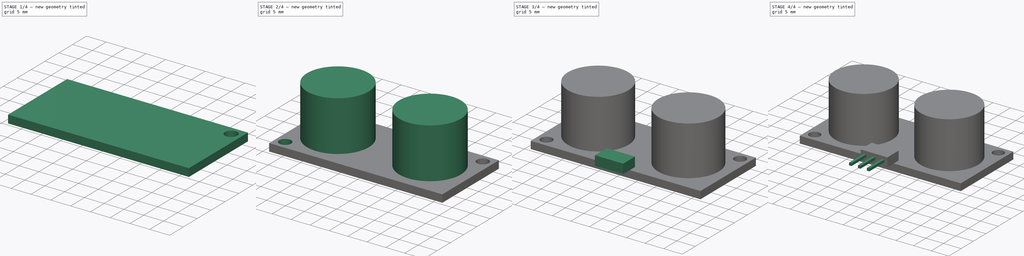
[diagram: build sequence overview — one tinted view per stage of 4, left to right]
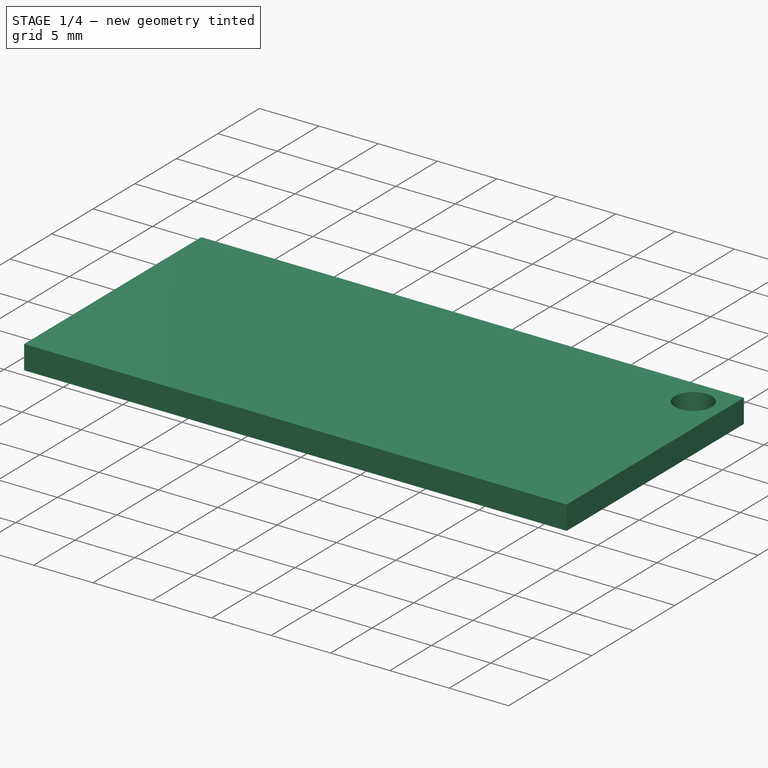
[diagram: stage 1 of 4 — iso view after this stage's code; geometry added in this stage tinted green]
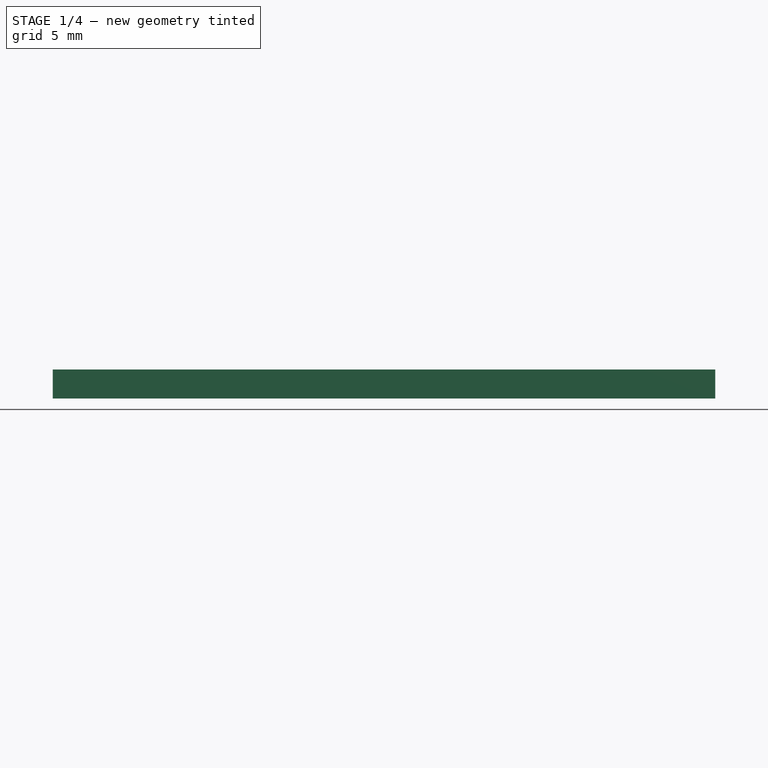
[diagram: stage 1 of 4 — front view after this stage's code; geometry added in this stage tinted green]
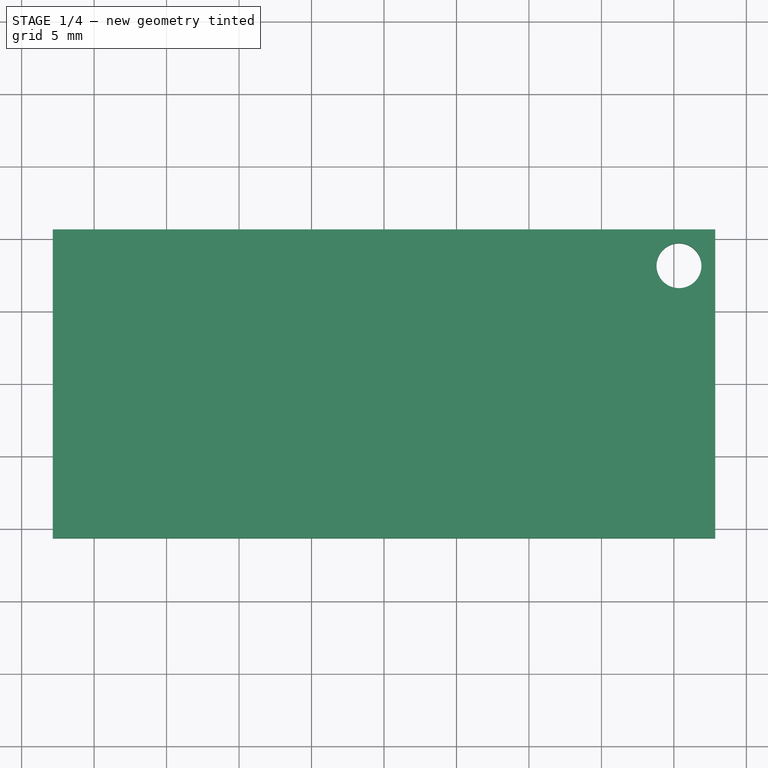
[diagram: stage 1 of 4 — top view after this stage's code; geometry added in this stage tinted green]
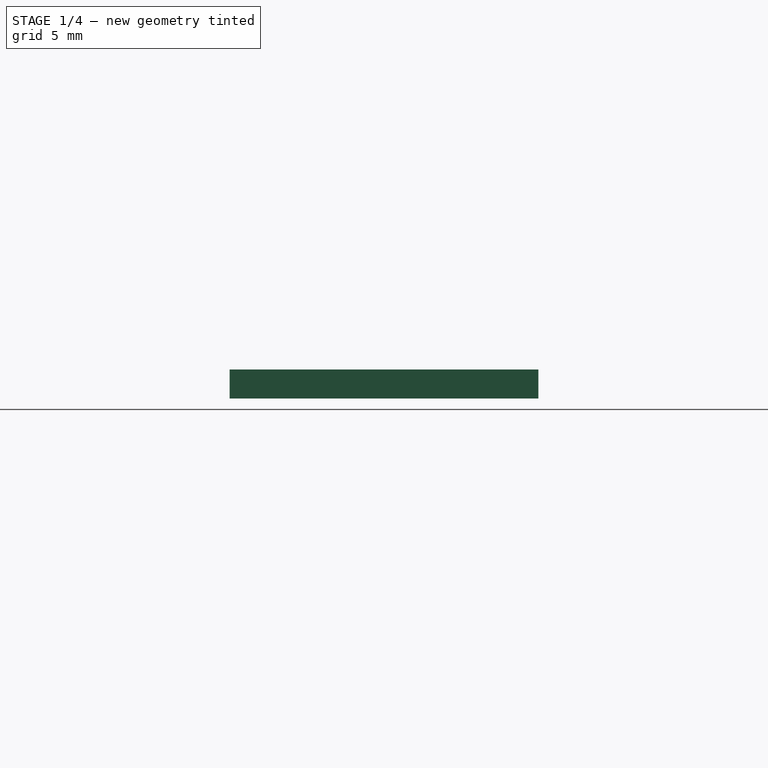
[diagram: stage 1 of 4 — right view after this stage's code; geometry added in this stage tinted green]
FCSTD DOCUMENT  (FreeCAD 0.18.4R)
Label: ultrazvučni_ping
License: All rights reserved
LicenseURL: http://en.wikipedia.org/wiki/All_rights_reserved
objects: Sketcher::SketchObject×6, PartDesign::Pad×6, PartDesign::PolarPattern×2, PartDesign::Pocket×1, PartDesign::LinearPattern×1, PartDesign::Body×1
note: 24 computed .brp shape members not serialized (recipe doc carries the construction recipe); baked Part::Feature solids carry a one-line shape summary decoded from their .brp

FEATURE [Sketcher::SketchObject] Sketch
  MapMode = 5
  Support = -> [XY_Plane]
  sketch-geometry (4):
    g0: LineSegment StartX=-22.85 StartY=10.65 StartZ=0 EndX=22.85 EndY=10.65 EndZ=0
    g1: LineSegment StartX=22.85 StartY=10.65 StartZ=0 EndX=22.85 EndY=-10.65 EndZ=0
    g2: LineSegment StartX=22.85 StartY=-10.65 StartZ=0 EndX=-22.85 EndY=-10.65 EndZ=0
    g3: LineSegment StartX=-22.85 StartY=-10.65 StartZ=0 EndX=-22.85 EndY=10.65 EndZ=0
  constraints (10):
    c: Coincident(g0,g1)
    c: Coincident(g1,g2)
    c: Coincident(g2,g3)
    c: Coincident(g3,g0)
    c: Horizontal(g2)
    c: Vertical(g1)
    c: Distance(g3) = 21.3
    c: Distance(g0) = 45.7
    c: Symmetric(g0,g2,g-1)
    c: Symmetric(g0,g0,g-2)
FEATURE [PartDesign::Pad] Pad
  Length = 2
  Length2 = 100
  Profile = -> Sketch
  Type = 0
FEATURE [Sketcher::SketchObject] Sketch001
  MapMode = 5
  Placement = pos=(0,0,2) rot=(0,0,1;0rad)
  Support = -> [Pad]
  expr: Constraints[2] = 3.1 / 2
  expr: Constraints[0] = 45.7 / 2 - 2.5
  expr: Constraints[1] = 21.3 / 2 - 2.5
  sketch-geometry (1):
    g0: Circle CenterX=20.35 CenterY=8.15 CenterZ=0 NormalX=0 NormalY=0 NormalZ=1 AngleXU=0 Radius=1.55
  constraints (3):
    c: DistanceX(g0) = 20.35
    c: DistanceY(g0) = 8.15
    c: Radius(g0) = 1.55
FEATURE [PartDesign::Pocket] Pocket
  BaseFeature = -> Pad
  Length = 5
  Length2 = 100
  Profile = -> Sketch001
  Type = 0
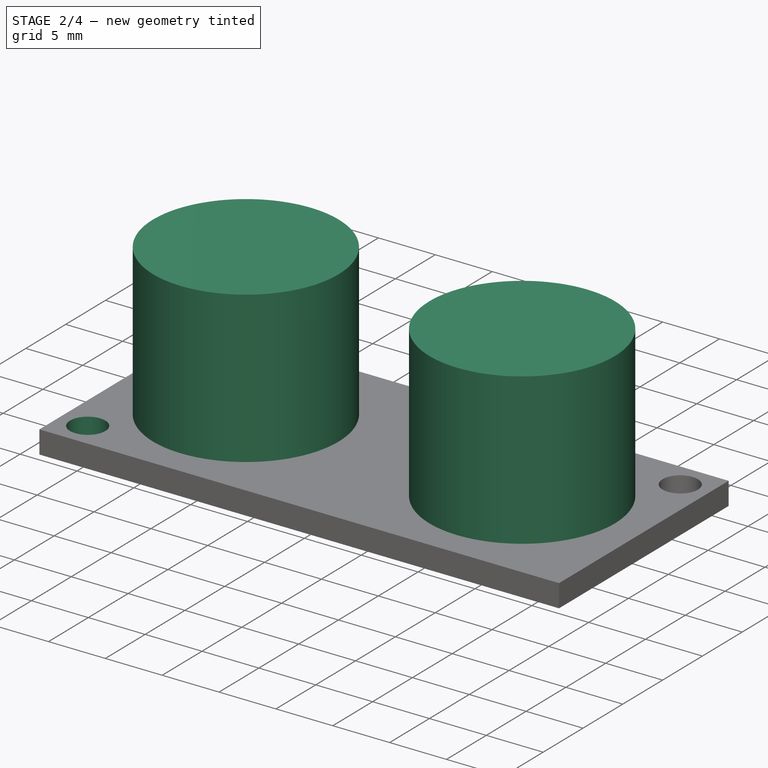
[diagram: stage 2 of 4 — iso view after this stage's code; geometry added in this stage tinted green]
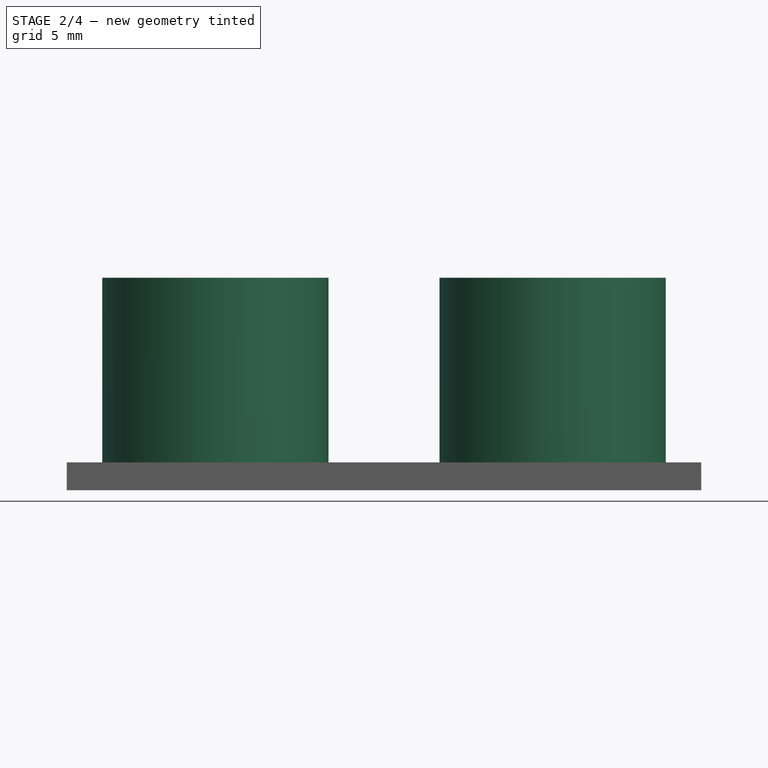
[diagram: stage 2 of 4 — front view after this stage's code; geometry added in this stage tinted green]
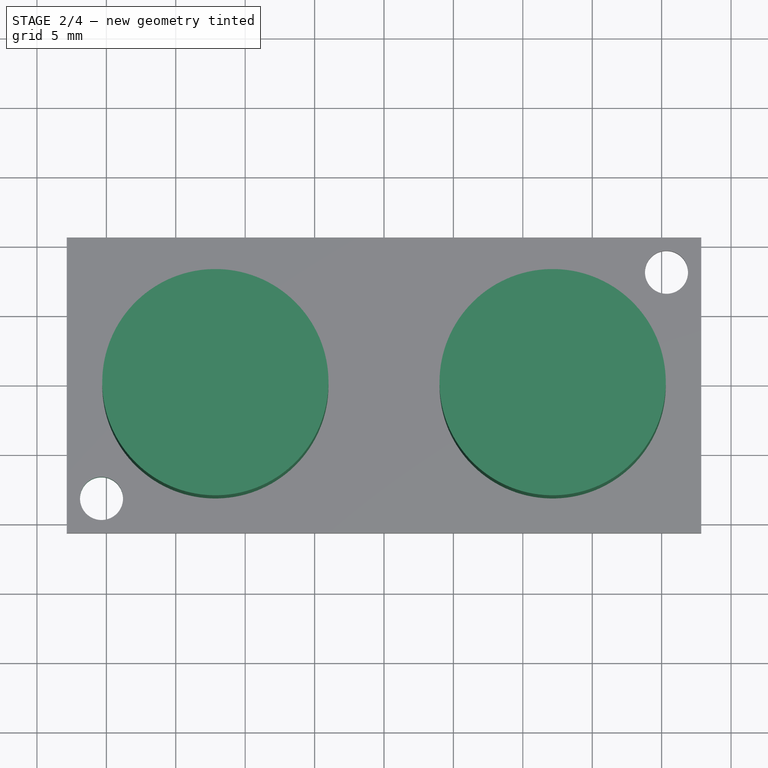
[diagram: stage 2 of 4 — top view after this stage's code; geometry added in this stage tinted green]
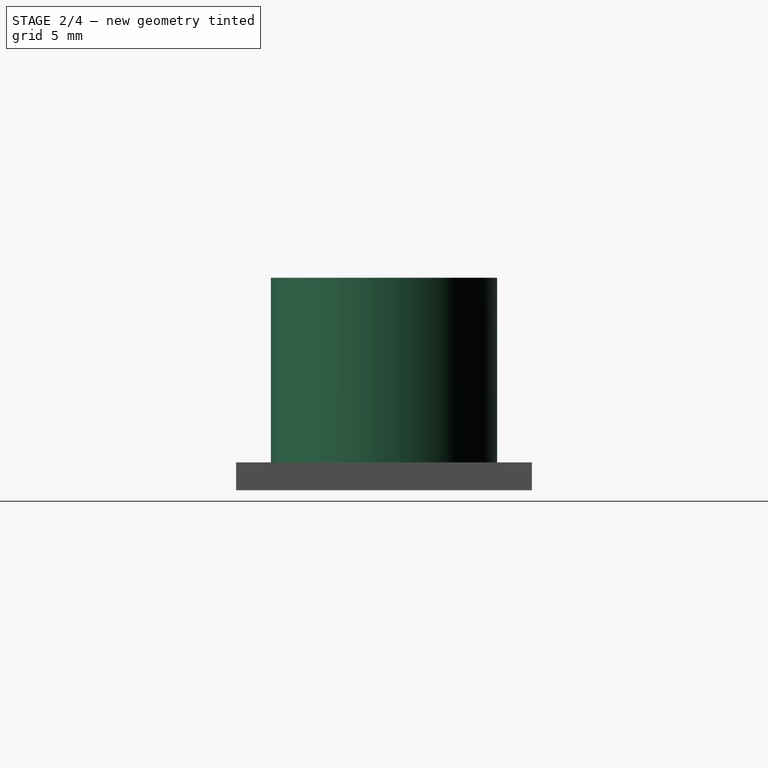
[diagram: stage 2 of 4 — right view after this stage's code; geometry added in this stage tinted green]
FEATURE [PartDesign::PolarPattern] PolarPattern
  Angle = 360
  Axis = -> Sketch001 [N_Axis]
  BaseFeature = -> Pocket
  Occurrences = 2
  Originals = -> [Pocket]
FEATURE [Sketcher::SketchObject] Sketch002
  MapMode = 5
  Placement = pos=(0,0,2) rot=(0,0,1;0rad)
  Support = -> [PolarPattern]
  expr: Constraints[1] = 16.3 / 2
  sketch-geometry (2):
    g0: Circle CenterX=11.278 CenterY=0 CenterZ=0 NormalX=0 NormalY=0 NormalZ=1 AngleXU=0 Radius=8.15
    g1: GeomPoint X=19.428 Y=0 Z=0
  constraints (4):
    c: PointOnObject(g0,g-1)
    c: Radius(g0) = 8.15
    c: PointOnObject(g1,g0)
    c: PointOnObject(g1,g-1)
FEATURE [PartDesign::Pad] Pad001
  BaseFeature = -> PolarPattern
  Length = 13.3
  Length2 = 100
  Profile = -> Sketch002
  Type = 0
  expr: Length = 15.3 - 2
FEATURE [PartDesign::PolarPattern] PolarPattern001
  Angle = 360
  Axis = -> Sketch002 [N_Axis]
  BaseFeature = -> Pad001
  Occurrences = 2
  Originals = -> [Pad001]
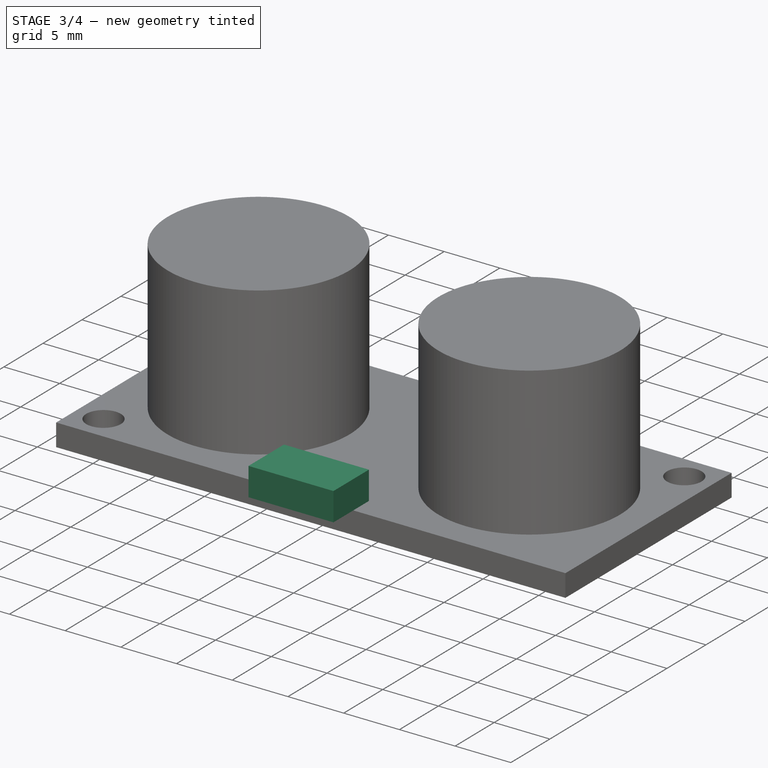
[diagram: stage 3 of 4 — iso view after this stage's code; geometry added in this stage tinted green]
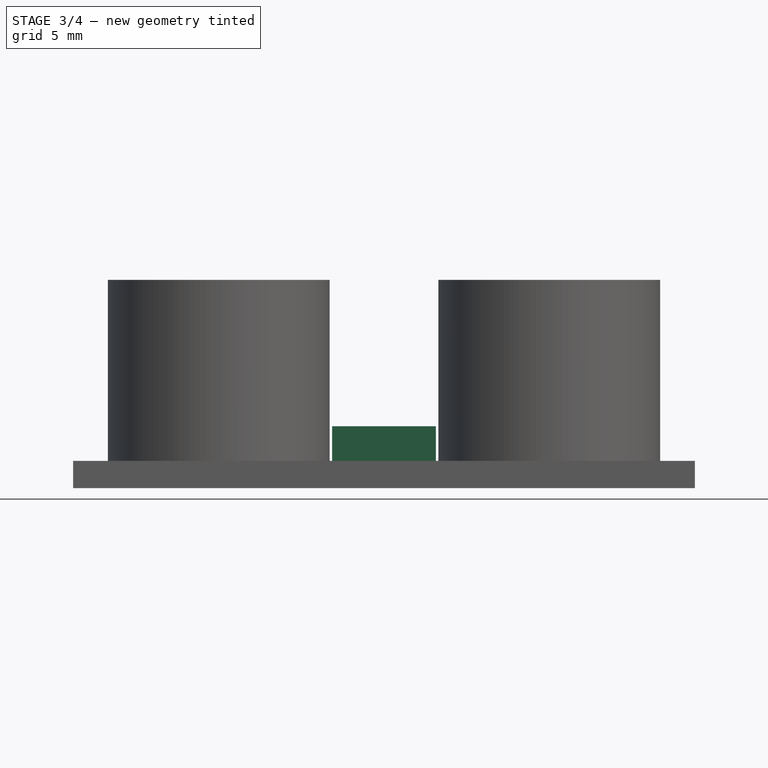
[diagram: stage 3 of 4 — front view after this stage's code; geometry added in this stage tinted green]
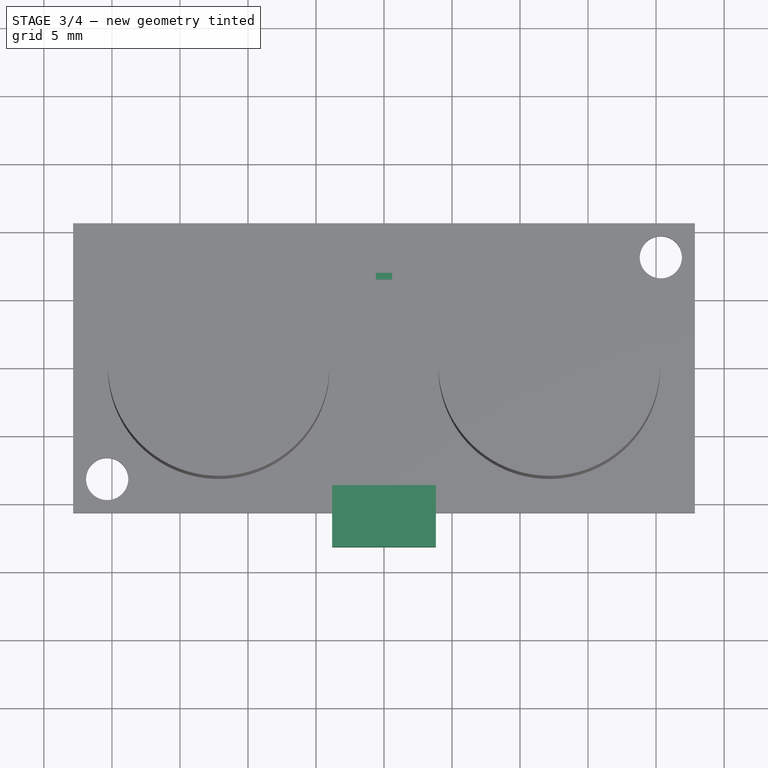
[diagram: stage 3 of 4 — top view after this stage's code; geometry added in this stage tinted green]
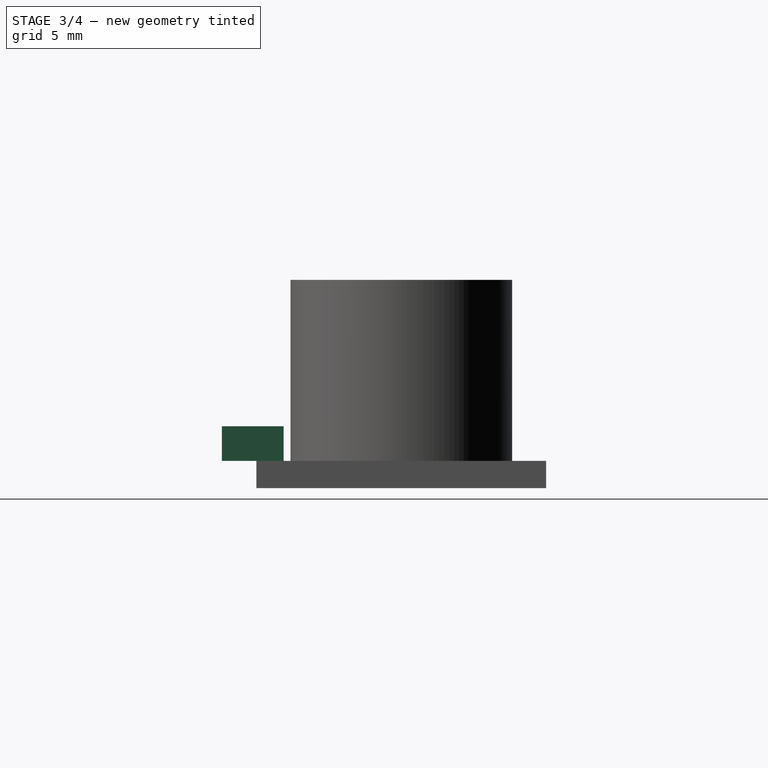
[diagram: stage 3 of 4 — right view after this stage's code; geometry added in this stage tinted green]
FEATURE [Sketcher::SketchObject] Sketch003
  MapMode = 5
  Placement = pos=(0,0,2) rot=(0,0,1;0rad)
  Support = -> [PolarPattern001]
  sketch-geometry (4):
    g0: LineSegment StartX=-0.6 StartY=7 StartZ=0 EndX=0.6 EndY=7 EndZ=0
    g1: LineSegment StartX=0.6 StartY=7 StartZ=0 EndX=0.6 EndY=6.5 EndZ=0
    g2: LineSegment StartX=0.6 StartY=6.5 StartZ=0 EndX=-0.6 EndY=6.5 EndZ=0
    g3: LineSegment StartX=-0.6 StartY=6.5 StartZ=0 EndX=-0.6 EndY=7 EndZ=0
  constraints (11):
    c: Coincident(g0,g1)
    c: Coincident(g1,g2)
    c: Coincident(g2,g3)
    c: Coincident(g3,g0)
    c: Horizontal(g2)
    c: Vertical(g1)
    c: Vertical(g3)
    c: Distance(g0) = 1.2
    c: Distance(g3) = 0.5
    c: Symmetric(g0,g0,g-2)
    c: DistanceY(g1) = 6.5
FEATURE [PartDesign::Pad] Pad002
  BaseFeature = -> PolarPattern001
  Length = 0.5
  Length2 = 100
  Profile = -> Sketch003
  Type = 0
FEATURE [Sketcher::SketchObject] Sketch004
  MapMode = 5
  Placement = pos=(0,0,2) rot=(0,0,1;0rad)
  Support = -> [Pad002]
  expr: Constraints[10] = -21.3 / 2
  expr: Constraints[8] = 2.54 * 3
  sketch-geometry (4):
    g0: LineSegment StartX=-3.81 StartY=-8.65 StartZ=0 EndX=3.81 EndY=-8.65 EndZ=0
    g1: LineSegment StartX=3.81 StartY=-8.65 StartZ=0 EndX=3.81 EndY=-10.65 EndZ=0
    g2: LineSegment StartX=3.81 StartY=-10.65 StartZ=0 EndX=-3.81 EndY=-10.65 EndZ=0
    g3: LineSegment StartX=-3.81 StartY=-10.65 StartZ=0 EndX=-3.81 EndY=-8.65 EndZ=0
  constraints (11):
    c: Coincident(g0,g1)
    c: Coincident(g1,g2)
    c: Coincident(g2,g3)
    c: Coincident(g3,g0)
    c: Horizontal(g2)
    c: Vertical(g1)
    c: Vertical(g3)
    c: Distance(g1) = 2
    c: Distance(g0) = 7.62
    c: Symmetric(g0,g0,g-2)
    c: DistanceY(g1) = -10.65
FEATURE [PartDesign::Pad] Pad003
  BaseFeature = -> Pad002
  Length = 2.54
  Length2 = 100
  Profile = -> Sketch004
  Type = 0
FEATURE [PartDesign::Pad] Pad004
  BaseFeature = -> Pad003
  Length = 2.54
  Length2 = 100
  Profile = -> Pad003 [Face18]
  Type = 0
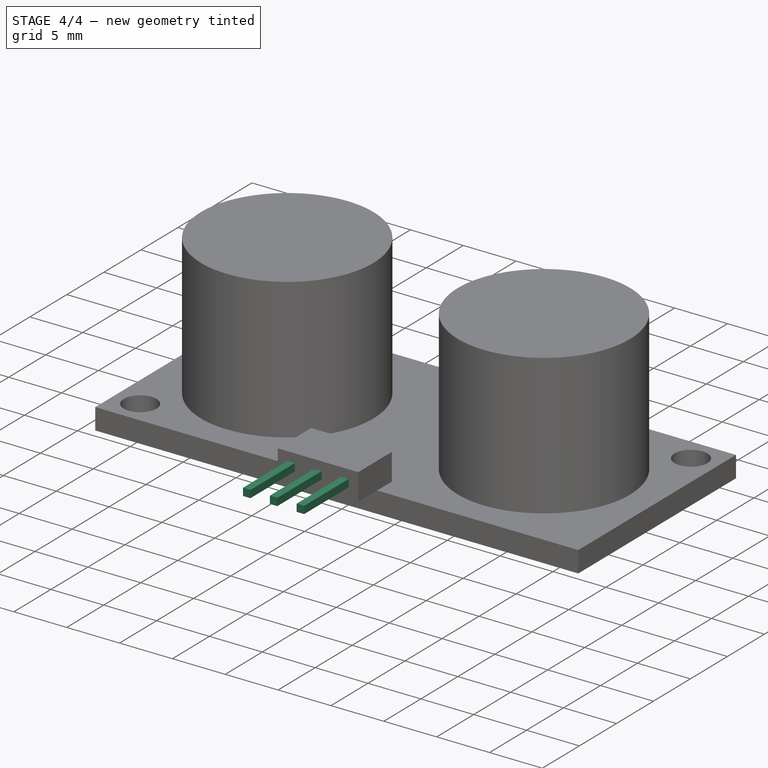
[diagram: stage 4 of 4 — iso view after this stage's code; geometry added in this stage tinted green]
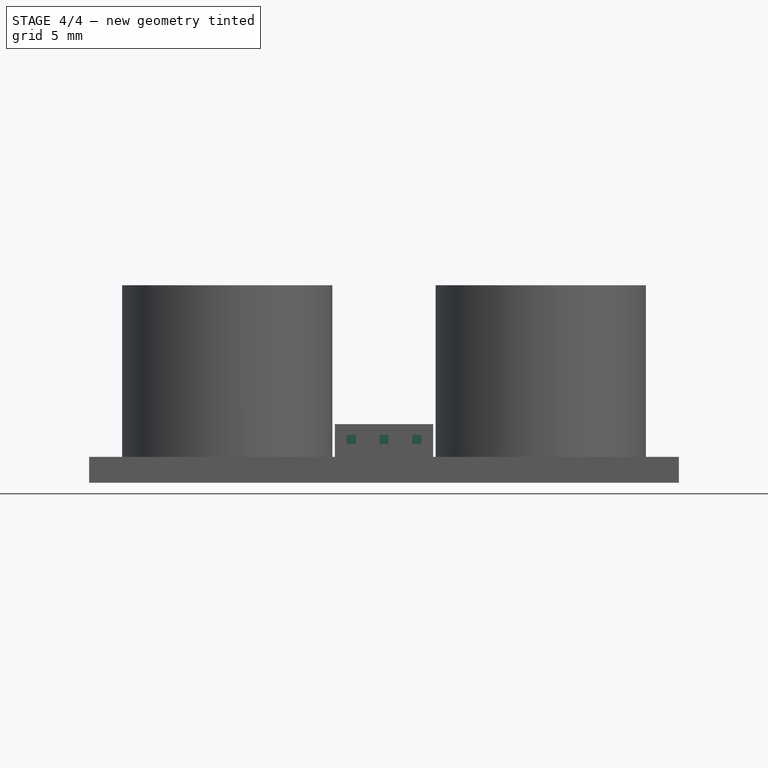
[diagram: stage 4 of 4 — front view after this stage's code; geometry added in this stage tinted green]
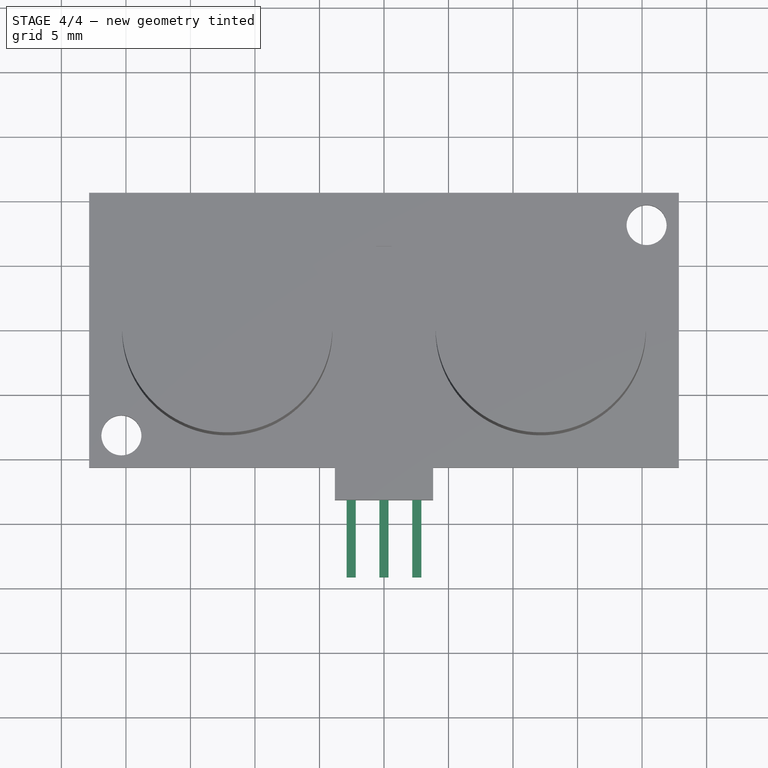
[diagram: stage 4 of 4 — top view after this stage's code; geometry added in this stage tinted green]
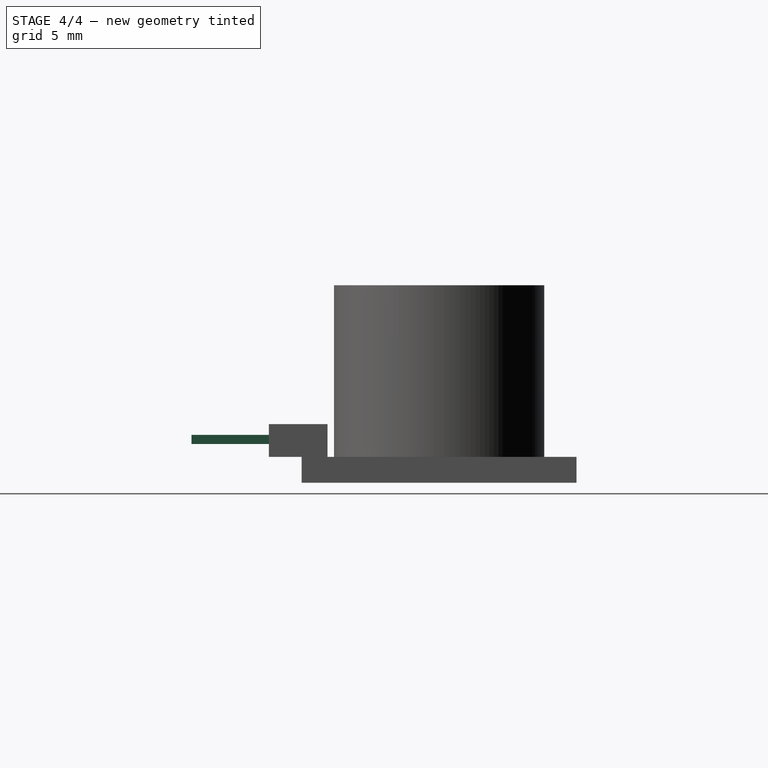
[diagram: stage 4 of 4 — right view after this stage's code; geometry added in this stage tinted green]
FEATURE [Sketcher::SketchObject] Sketch005
  MapMode = 5
  Placement = pos=(0,-13.19,0) rot=(1,0,0;1.5708rad)
  Support = -> [Pad004]
  expr: Constraints[10] = 2 + 2 / 2
  sketch-geometry (6):
    g0: LineSegment StartX=-2.89355 StartY=3.70711 StartZ=0 EndX=-2.18645 EndY=3.70711 EndZ=0
    g1: LineSegment StartX=-2.18645 StartY=3.70711 StartZ=0 EndX=-2.18645 EndY=3 EndZ=0
    g2: LineSegment StartX=-2.18645 StartY=3 StartZ=0 EndX=-2.89355 EndY=3 EndZ=0
    g3: LineSegment StartX=-2.89355 StartY=3 StartZ=0 EndX=-2.89355 EndY=3.70711 EndZ=0
    g4: LineSegment [constr] StartX=-2.89355 StartY=3.70711 StartZ=0 EndX=-2.54 EndY=3.35355 EndZ=0
    g5: LineSegment [constr] StartX=-2.54 StartY=3.35355 StartZ=0 EndX=-2.18645 EndY=3 EndZ=0
  constraints (17):
    c: Coincident(g0,g1)
    c: Coincident(g1,g2)
    c: Coincident(g2,g3)
    c: Coincident(g3,g0)
    c: Horizontal(g0)
    c: Horizontal(g2)
    c: Vertical(g1)
    c: Vertical(g3)
    c: Distance(g0,g1) = 1
    c: Equal(g0,g3)
    c: DistanceY(g1) = 3
    c: Coincident(g4,g5)
    c: Coincident(g5,g1)
    c: Equal(g5,g4)
    c: Coincident(g4,g0)
    c: Parallel(g4,g5)
    c: DistanceX(g4) = -2.54
FEATURE [PartDesign::Pad] Pad005
  BaseFeature = -> Pad004
  Length = 6
  Length2 = 100
  Profile = -> Sketch005
  Type = 0
FEATURE [PartDesign::LinearPattern] LinearPattern
  BaseFeature = -> Pad005
  Direction = -> Sketch005 [H_Axis]
  Length = 5.08
  Occurrences = 3
  Originals = -> [Pad005]
  expr: Length = 2.54 * 2
FEATURE [PartDesign::Body] Body
  Group = -> [Sketch,Pad,Sketch001,Pocket,PolarPattern,Sketch002,Pad001,PolarPattern001,Sketch003,Pad002,Sketch004,Pad003,Pad004,Sketch005,Pad005,LinearPattern]
  Origin = -> Origin
  Tip = -> LinearPattern
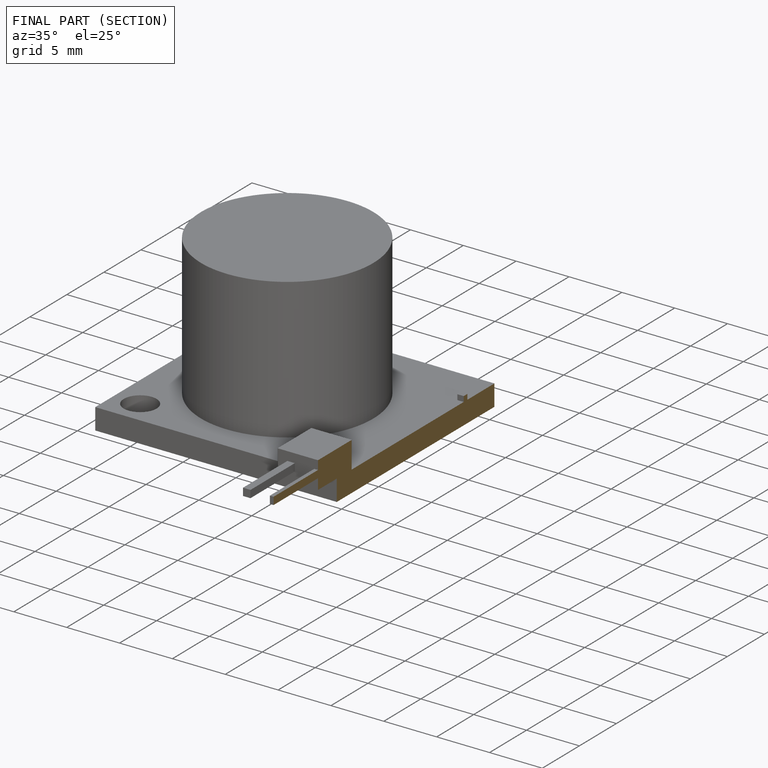
[diagram: finished part — half-section view (interior)]
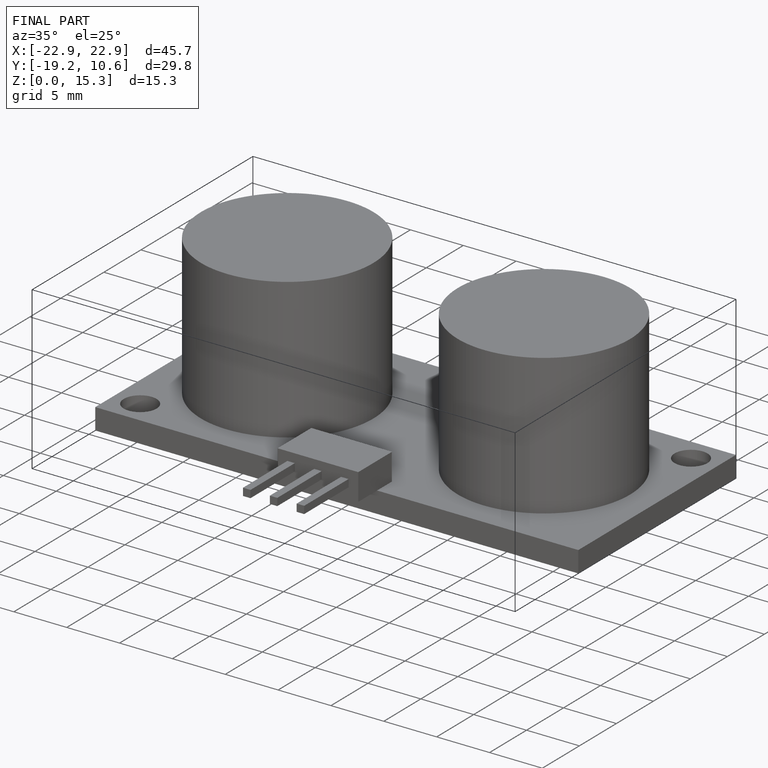
[diagram: finished part — iso view with bounding-box wireframe]
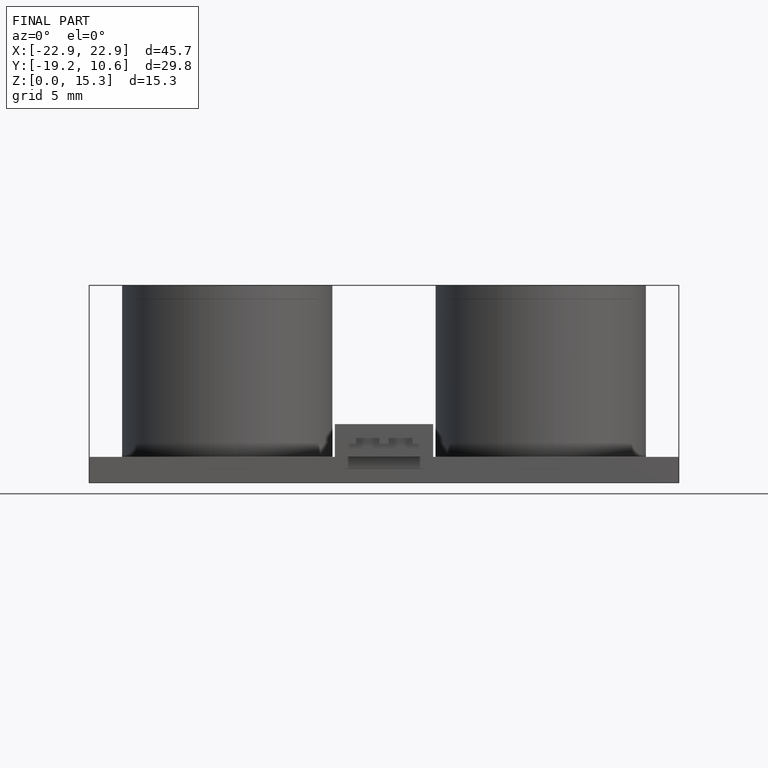
[diagram: finished part — front view with bounding-box wireframe]
